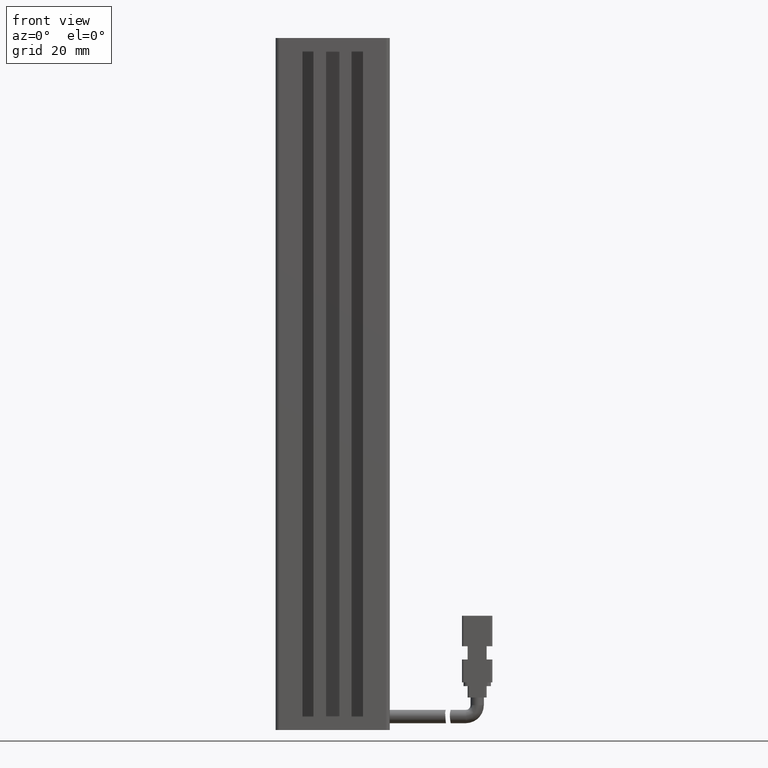
[diagram: clean part render]
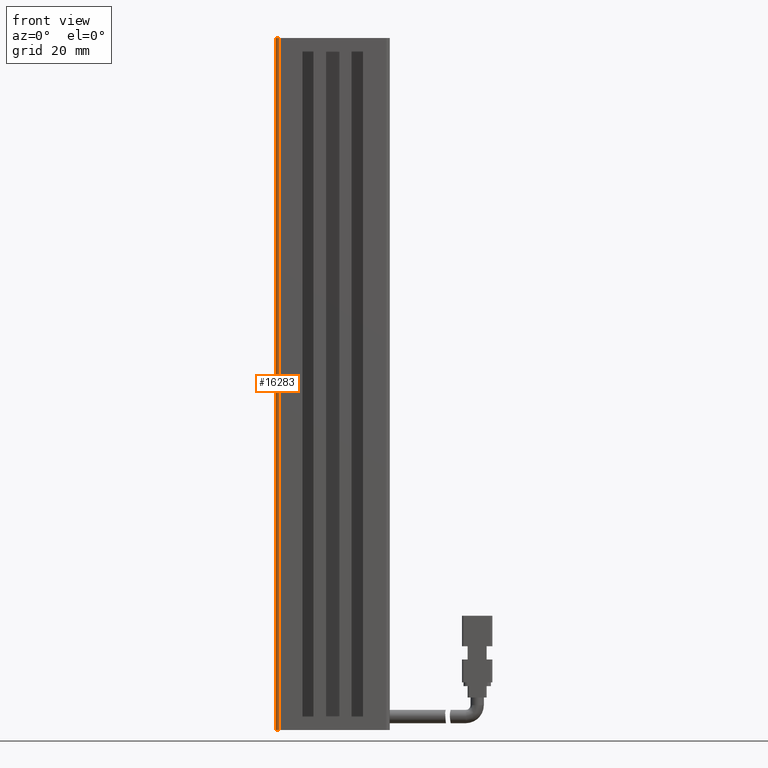
[diagram: same view with one face highlighted and labeled with its STEP entity id]
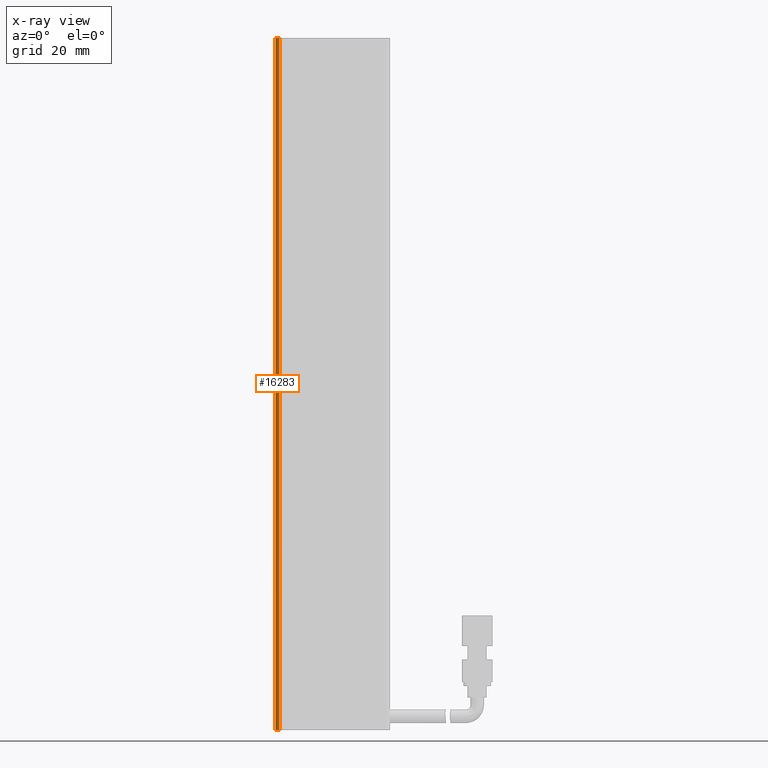
[diagram: x-ray of the same camera — body ghosted, the highlighted face saturated]
A machine part, front view. The second image highlights one B-rep face of the part: STEP entity #16283.
The next image is the same camera in x-ray: the body ghosted, the highlighted face saturated — about 0% of this face is hidden behind the body in this view.
In plain terms, the highlighted cylindrical surface (edge-blend (fillet) strip) has radius 1 mm, axis along (-0, -0, -1).
Its self-contained STEP definition (entity closure, byte-faithful):
#418 = LINE ( 'NONE', #42749, #34928 ) ;
#4404 = DIRECTION ( 'NONE',  ( 0.0000000000000000000, 0.0000000000000000000, 1.000000000000000000 ) ) ;
#5662 = AXIS2_PLACEMENT_3D ( 'NONE', #24422, #4404, #27792 ) ;
#6971 = VERTEX_POINT ( 'NONE', #25738 ) ;
#7816 = LINE ( 'NONE', #18411, #33438 ) ;
#9659 = FACE_OUTER_BOUND ( 'NONE', #30920, .T. ) ;
#12658 = VERTEX_POINT ( 'NONE', #34902 ) ;
#16283 = ADVANCED_FACE ( 'NONE', ( #9659 ), #41079, .T. ) ;
#16773 = VERTEX_POINT ( 'NONE', #21335 ) ;
#18411 = CARTESIAN_POINT ( 'NONE',  ( 25.92537974683542100, 11.69594479660387000, -24.00000000000000700 ) ) ;
#18706 = DIRECTION ( 'NONE',  ( -0.0000000000000000000, -0.0000000000000000000, -1.000000000000000000 ) ) ;
#19576 = DIRECTION ( 'NONE',  ( -0.0000000000000000000, -0.0000000000000000000, -1.000000000000000000 ) ) ;
#20055 = ORIENTED_EDGE ( 'NONE', *, *, #37792, .T. ) ;
#21335 = CARTESIAN_POINT ( 'NONE',  ( 26.92537974683542100, 10.69594479660386800, -206.0000000000000300 ) ) ;
#21376 = AXIS2_PLACEMENT_3D ( 'NONE', #39640, #19576, #42999 ) ;
#21804 = DIRECTION ( 'NONE',  ( -0.0000000000000000000, -0.0000000000000000000, -1.000000000000000000 ) ) ;
#23740 = EDGE_CURVE ( 'NONE', #12658, #16773, #40436, .T. ) ;
#24422 = CARTESIAN_POINT ( 'NONE',  ( 26.92537974683542100, 11.69594479660387000, -206.0000000000000300 ) ) ;
#25196 = ORIENTED_EDGE ( 'NONE', *, *, #37982, .T. ) ;
#25738 = CARTESIAN_POINT ( 'NONE',  ( 25.92537974683542100, 11.69594479660387000, -24.00000000000000700 ) ) ;
#27792 = DIRECTION ( 'NONE',  ( -1.000000000000000000, 0.0000000000000000000, 0.0000000000000000000 ) ) ;
#27812 = ORIENTED_EDGE ( 'NONE', *, *, #23740, .T. ) ;
#28368 = CARTESIAN_POINT ( 'NONE',  ( 26.92537974683542100, 10.69594479660386800, -24.00000000000000700 ) ) ;
#28828 = EDGE_CURVE ( 'NONE', #32813, #16773, #418, .T. ) ;
#29457 = DIRECTION ( 'NONE',  ( 0.0000000000000000000, -0.0000000000000000000, -1.000000000000000000 ) ) ;
#30257 = CIRCLE ( 'NONE', #21376, 1.000000000000000900 ) ;
#30920 = EDGE_LOOP ( 'NONE', ( #25196, #20055, #27812, #37995 ) ) ;
#32813 = VERTEX_POINT ( 'NONE', #28368 ) ;
#33438 = VECTOR ( 'NONE', #21804, 1000.000000000000000 ) ;
#34902 = CARTESIAN_POINT ( 'NONE',  ( 25.92537974683542100, 11.69594479660387000, -206.0000000000000300 ) ) ;
#34928 = VECTOR ( 'NONE', #29457, 1000.000000000000000 ) ;
#35584 = DIRECTION ( 'NONE',  ( -1.000000000000000000, 0.0000000000000000000, 0.0000000000000000000 ) ) ;
#37792 = EDGE_CURVE ( 'NONE', #6971, #12658, #7816, .T. ) ;
#37982 = EDGE_CURVE ( 'NONE', #32813, #6971, #30257, .T. ) ;
#37995 = ORIENTED_EDGE ( 'NONE', *, *, #28828, .F. ) ;
#38810 = CARTESIAN_POINT ( 'NONE',  ( 26.92537974683542100, 11.69594479660387000, -24.00000000000000700 ) ) ;
#39640 = CARTESIAN_POINT ( 'NONE',  ( 26.92537974683542100, 11.69594479660387000, -24.00000000000000700 ) ) ;
#40436 = CIRCLE ( 'NONE', #5662, 1.000000000000000900 ) ;
#41079 = CYLINDRICAL_SURFACE ( 'NONE', #41321, 1.000000000000000900 ) ;
#41321 = AXIS2_PLACEMENT_3D ( 'NONE', #38810, #18706, #35584 ) ;
#42749 = CARTESIAN_POINT ( 'NONE',  ( 26.92537974683542100, 10.69594479660386800, -24.00000000000000700 ) ) ;
#42999 = DIRECTION ( 'NONE',  ( -1.000000000000000000, 0.0000000000000000000, 0.0000000000000000000 ) ) ;